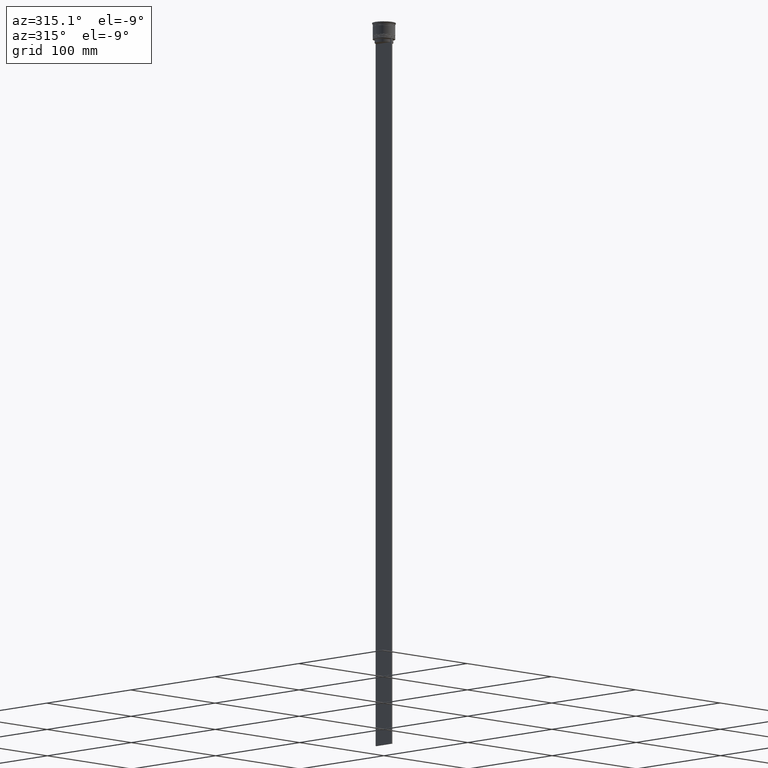
[diagram: clean part render]
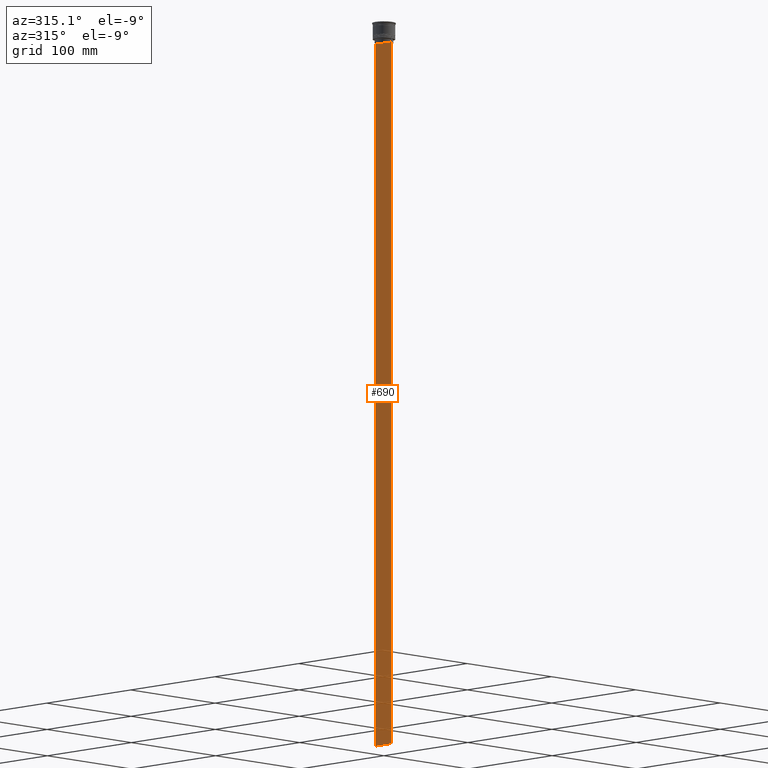
[diagram: same view with one face highlighted and labeled with its STEP entity id]
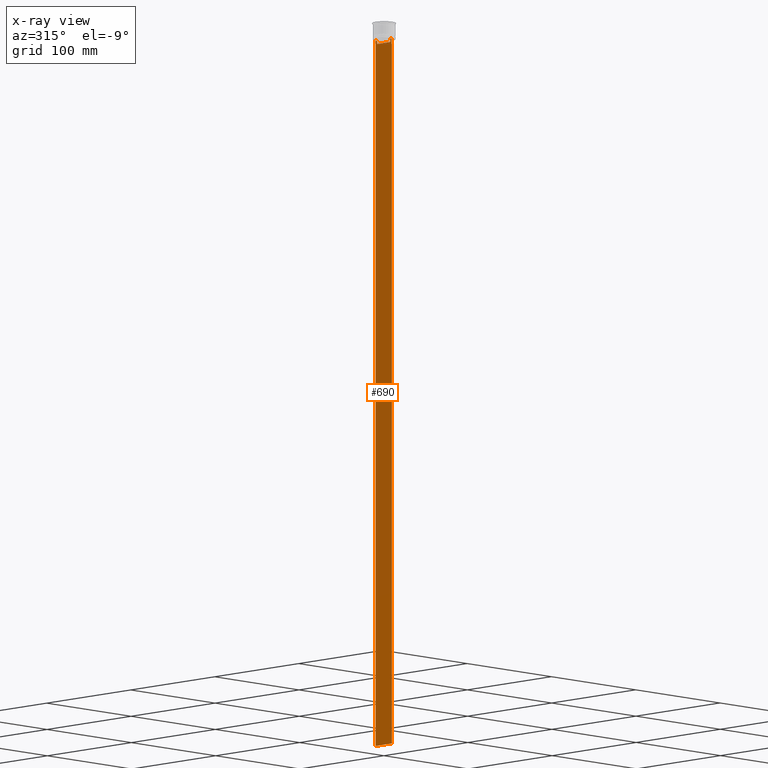
[diagram: x-ray of the same camera — body ghosted, the highlighted face saturated]
A machine part, auxiliary view. The second image highlights one B-rep face of the part: STEP entity #690.
The next image is the same camera in x-ray: the body ghosted, the highlighted face saturated — about 0% of this face is hidden behind the body in this view.
In plain terms, the highlighted planar face has unit normal (-1, 0, 0).
Its self-contained STEP definition (entity closure, byte-faithful):
#48 = PLANE ( 'NONE',  #2663 ) ;
#56 = ORIENTED_EDGE ( 'NONE', *, *, #1070, .F. ) ;
#57 = DIRECTION ( 'NONE',  ( -0.000000000000000000, -0.000000000000000000, 1.000000000000000000 ) ) ;
#64 = LINE ( 'NONE', #1726, #826 ) ;
#112 = CARTESIAN_POINT ( 'NONE',  ( -0.5000000000000000000, 8.385105843100605583, -14.00000000000000178 ) ) ;
#114 = CARTESIAN_POINT ( 'NONE',  ( -0.5000000000000000000, -9.500000000000001776, -14.00000000000000178 ) ) ;
#125 = EDGE_CURVE ( 'NONE', #993, #1062, #1385, .T. ) ;
#193 = DIRECTION ( 'NONE',  ( 0.000000000000000000, -1.000000000000000000, 0.000000000000000000 ) ) ;
#220 = VERTEX_POINT ( 'NONE', #114 ) ;
#231 = ORIENTED_EDGE ( 'NONE', *, *, #2631, .T. ) ;
#248 = CARTESIAN_POINT ( 'NONE',  ( -0.5000000000000000000, -9.500000000000001776, -14.00000000000000178 ) ) ;
#338 = DIRECTION ( 'NONE',  ( 0.000000000000000000, -1.000000000000000000, 0.000000000000000000 ) ) ;
#373 = DIRECTION ( 'NONE',  ( 0.000000000000000000, -1.000000000000000000, 0.000000000000000000 ) ) ;
#386 = ORIENTED_EDGE ( 'NONE', *, *, #2517, .F. ) ;
#410 = DIRECTION ( 'NONE',  ( 0.000000000000000000, 0.000000000000000000, -1.000000000000000000 ) ) ;
#441 = CARTESIAN_POINT ( 'NONE',  ( -0.5000000000000000000, -9.500000000000001776, -14.00000000000000178 ) ) ;
#485 = LINE ( 'NONE', #938, #1194 ) ;
#510 = VECTOR ( 'NONE', #193, 1000.000000000000000 ) ;
#590 = ORIENTED_EDGE ( 'NONE', *, *, #1479, .F. ) ;
#606 = DIRECTION ( 'NONE',  ( 0.000000000000000000, -1.000000000000000000, 0.000000000000000000 ) ) ;
#618 = CARTESIAN_POINT ( 'NONE',  ( -0.5000000000000000000, -8.218133703942523738, -14.16667607853445787 ) ) ;
#684 = VECTOR ( 'NONE', #1066, 1000.000000000000000 ) ;
#690 = ADVANCED_FACE ( 'NONE', ( #915 ), #48, .T. ) ;
#731 = VECTOR ( 'NONE', #57, 1000.000000000000000 ) ;
#826 = VECTOR ( 'NONE', #1468, 1000.000000000000000 ) ;
#868 = VECTOR ( 'NONE', #606, 1000.000000000000000 ) ;
#898 = LINE ( 'NONE', #1079, #731 ) ;
#915 = FACE_OUTER_BOUND ( 'NONE', #2569, .T. ) ;
#930 = CARTESIAN_POINT ( 'NONE',  ( -0.5000000000000000000, 7.884161337770803080, -14.50000000000000000 ) ) ;
#938 = CARTESIAN_POINT ( 'NONE',  ( -0.5000000000000000000, 7.884161337770803080, 0.000000000000000000 ) ) ;
#939 = EDGE_CURVE ( 'NONE', #2544, #1266, #2653, .T. ) ;
#950 = CARTESIAN_POINT ( 'NONE',  ( -0.5000000000000000000, -9.500000000000001776, -614.0000000000000000 ) ) ;
#982 = B_SPLINE_CURVE_WITH_KNOTS ( 'NONE', 3,
 ( #2439, #2471, #618, #2214 ),
 .UNSPECIFIED., .F., .F.,
 ( 4, 4 ),
 ( 0.03673372442973153046, 0.03744389749832059688 ),
 .UNSPECIFIED. ) ;
#991 = VECTOR ( 'NONE', #1807, 1000.000000000000000 ) ;
#993 = VERTEX_POINT ( 'NONE', #1819 ) ;
#999 = EDGE_CURVE ( 'NONE', #220, #2357, #2252, .T. ) ;
#1013 = B_SPLINE_CURVE_WITH_KNOTS ( 'NONE', 3,
 ( #1709, #2138, #2384, #930 ),
 .UNSPECIFIED., .F., .F.,
 ( 4, 4 ),
 ( 0.01426761478740281447, 0.01497538974438914448 ),
 .UNSPECIFIED. ) ;
#1039 = EDGE_CURVE ( 'NONE', #1632, #1678, #2085, .T. ) ;
#1062 = VERTEX_POINT ( 'NONE', #1721 ) ;
#1066 = DIRECTION ( 'NONE',  ( 0.000000000000000000, -1.000000000000000000, 0.000000000000000000 ) ) ;
#1070 = EDGE_CURVE ( 'NONE', #2104, #993, #485, .T. ) ;
#1079 = CARTESIAN_POINT ( 'NONE',  ( -0.5000000000000000000, -7.884161337770803080, 0.000000000000000000 ) ) ;
#1113 = VECTOR ( 'NONE', #410, 1000.000000000000000 ) ;
#1123 = DIRECTION ( 'NONE',  ( -1.000000000000000000, 0.000000000000000000, 0.000000000000000000 ) ) ;
#1194 = VECTOR ( 'NONE', #2319, 1000.000000000000000 ) ;
#1223 = CARTESIAN_POINT ( 'NONE',  ( -0.5000000000000000000, -9.500000000000001776, 5.026297590440445440 ) ) ;
#1266 = VERTEX_POINT ( 'NONE', #1366 ) ;
#1300 = CARTESIAN_POINT ( 'NONE',  ( -0.5000000000000000000, -8.385105843100605583, -14.00000000000000178 ) ) ;
#1344 = LINE ( 'NONE', #2173, #2140 ) ;
#1366 = CARTESIAN_POINT ( 'NONE',  ( -0.5000000000000000000, -9.386692708297204035, -14.00000000000000178 ) ) ;
#1385 = LINE ( 'NONE', #2212, #2174 ) ;
#1405 = ORIENTED_EDGE ( 'NONE', *, *, #939, .F. ) ;
#1468 = DIRECTION ( 'NONE',  ( 0.000000000000000000, 1.000000000000000000, 0.000000000000000000 ) ) ;
#1479 = EDGE_CURVE ( 'NONE', #1062, #1498, #898, .T. ) ;
#1498 = VERTEX_POINT ( 'NONE', #1521 ) ;
#1507 = DIRECTION ( 'NONE',  ( 0.000000000000000000, 0.000000000000000000, 1.000000000000000000 ) ) ;
#1521 = CARTESIAN_POINT ( 'NONE',  ( -0.5000000000000000000, -7.884161337770803080, -14.50000000000000000 ) ) ;
#1533 = ORIENTED_EDGE ( 'NONE', *, *, #1697, .F. ) ;
#1632 = VERTEX_POINT ( 'NONE', #2379 ) ;
#1645 = CARTESIAN_POINT ( 'NONE',  ( -0.5000000000000000000, -9.500000000000001776, -14.00000000000000178 ) ) ;
#1678 = VERTEX_POINT ( 'NONE', #112 ) ;
#1697 = EDGE_CURVE ( 'NONE', #2168, #1632, #1344, .T. ) ;
#1709 = CARTESIAN_POINT ( 'NONE',  ( -0.5000000000000000000, 8.385105843100605583, -14.00000000000000178 ) ) ;
#1721 = CARTESIAN_POINT ( 'NONE',  ( -0.5000000000000000000, -7.884161337770803080, -17.00000000000000000 ) ) ;
#1726 = CARTESIAN_POINT ( 'NONE',  ( -0.5000000000000000000, -9.500000000000001776, -614.0000000000000000 ) ) ;
#1738 = EDGE_CURVE ( 'NONE', #1266, #220, #1775, .T. ) ;
#1739 = CARTESIAN_POINT ( 'NONE',  ( -0.5000000000000000000, 9.499999999999994671, -14.00000000000000178 ) ) ;
#1775 = LINE ( 'NONE', #1645, #868 ) ;
#1783 = CARTESIAN_POINT ( 'NONE',  ( -0.5000000000000000000, 9.499999999999998224, -614.0000000000000000 ) ) ;
#1807 = DIRECTION ( 'NONE',  ( 0.000000000000000000, 0.000000000000000000, -1.000000000000000000 ) ) ;
#1819 = CARTESIAN_POINT ( 'NONE',  ( -0.5000000000000000000, 7.884161337770803080, -17.00000000000000000 ) ) ;
#1909 = EDGE_CURVE ( 'NONE', #2357, #2633, #64, .T. ) ;
#1938 = ORIENTED_EDGE ( 'NONE', *, *, #1909, .F. ) ;
#2043 = ORIENTED_EDGE ( 'NONE', *, *, #1738, .F. ) ;
#2085 = LINE ( 'NONE', #248, #510 ) ;
#2104 = VERTEX_POINT ( 'NONE', #2157 ) ;
#2123 = CARTESIAN_POINT ( 'NONE',  ( -0.5000000000000000000, -9.500000000000001776, 5.026297590440445440 ) ) ;
#2138 = CARTESIAN_POINT ( 'NONE',  ( -0.5000000000000000000, 8.218133718559618828, -14.16667606394327983 ) ) ;
#2140 = VECTOR ( 'NONE', #338, 1000.000000000000000 ) ;
#2157 = CARTESIAN_POINT ( 'NONE',  ( -0.5000000000000000000, 7.884161337770803080, -14.50000000000000000 ) ) ;
#2168 = VERTEX_POINT ( 'NONE', #1739 ) ;
#2173 = CARTESIAN_POINT ( 'NONE',  ( -0.5000000000000000000, -9.500000000000001776, -14.00000000000000178 ) ) ;
#2174 = VECTOR ( 'NONE', #373, 1000.000000000000000 ) ;
#2212 = CARTESIAN_POINT ( 'NONE',  ( -0.5000000000000000000, 7.899999999999994138, -17.00000000000000000 ) ) ;
#2214 = CARTESIAN_POINT ( 'NONE',  ( -0.5000000000000000000, -8.385105843100605583, -14.00000000000000178 ) ) ;
#2222 = CARTESIAN_POINT ( 'NONE',  ( -0.5000000000000000000, 9.499999999999998224, 5.026297590440445440 ) ) ;
#2252 = LINE ( 'NONE', #1223, #1113 ) ;
#2281 = EDGE_CURVE ( 'NONE', #1498, #2544, #982, .T. ) ;
#2286 = ORIENTED_EDGE ( 'NONE', *, *, #2281, .F. ) ;
#2293 = ORIENTED_EDGE ( 'NONE', *, *, #999, .F. ) ;
#2295 = ORIENTED_EDGE ( 'NONE', *, *, #1039, .F. ) ;
#2306 = ORIENTED_EDGE ( 'NONE', *, *, #125, .F. ) ;
#2319 = DIRECTION ( 'NONE',  ( 0.000000000000000000, 0.000000000000000000, -1.000000000000000000 ) ) ;
#2357 = VERTEX_POINT ( 'NONE', #950 ) ;
#2379 = CARTESIAN_POINT ( 'NONE',  ( -0.5000000000000000000, 9.386692708297204035, -14.00000000000000178 ) ) ;
#2384 = CARTESIAN_POINT ( 'NONE',  ( -0.5000000000000000000, 8.051152811434374001, -14.33334332653219079 ) ) ;
#2439 = CARTESIAN_POINT ( 'NONE',  ( -0.5000000000000000000, -7.884161337770803080, -14.50000000000000000 ) ) ;
#2471 = CARTESIAN_POINT ( 'NONE',  ( -0.5000000000000000000, -8.051152795888546265, -14.33334334204685057 ) ) ;
#2517 = EDGE_CURVE ( 'NONE', #1678, #2104, #1013, .T. ) ;
#2544 = VERTEX_POINT ( 'NONE', #1300 ) ;
#2569 = EDGE_LOOP ( 'NONE', ( #386, #2295, #1533, #231, #1938, #2293, #2043, #1405, #2286, #590, #2306, #56 ) ) ;
#2631 = EDGE_CURVE ( 'NONE', #2168, #2633, #2654, .T. ) ;
#2633 = VERTEX_POINT ( 'NONE', #1783 ) ;
#2653 = LINE ( 'NONE', #441, #684 ) ;
#2654 = LINE ( 'NONE', #2222, #991 ) ;
#2663 = AXIS2_PLACEMENT_3D ( 'NONE', #2123, #1123, #1507 ) ;